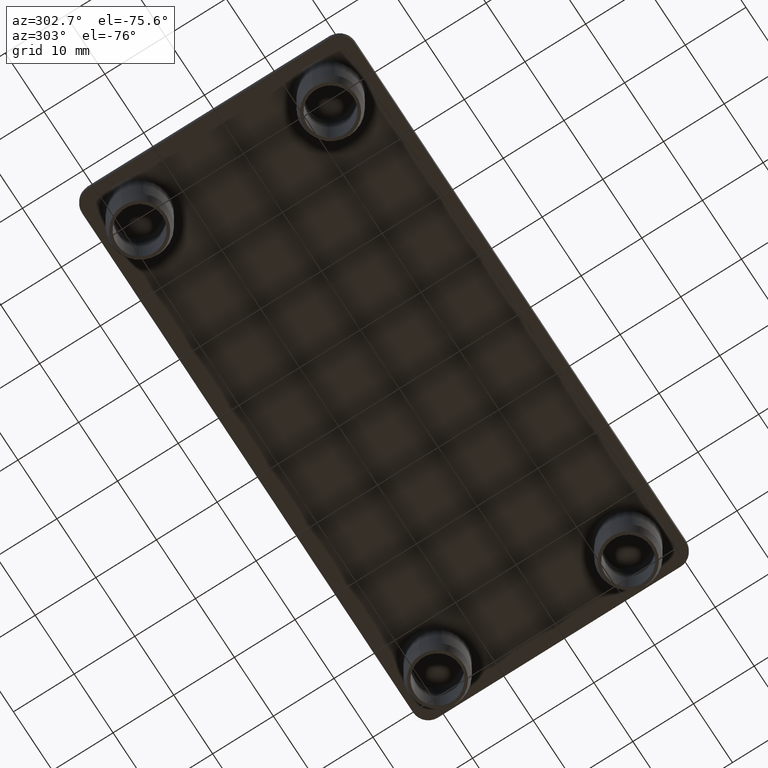
[diagram: clean part render]
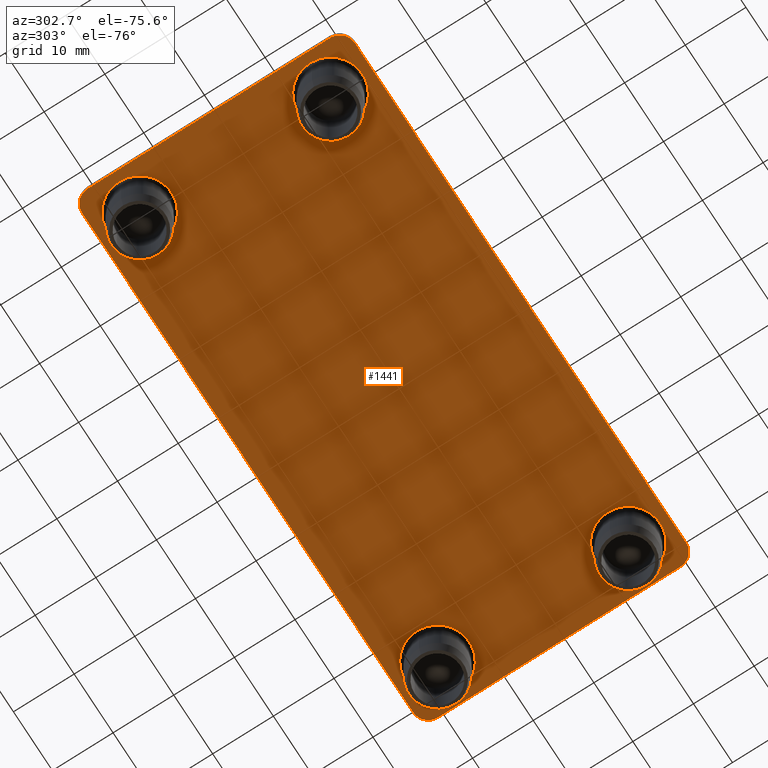
[diagram: same view with one face highlighted and labeled with its STEP entity id]
A machine part, auxiliary view. The second image highlights one B-rep face of the part: STEP entity #1441.
In plain terms, the highlighted planar face has unit normal (0, 0, -1).
Its self-contained STEP definition (entity closure, byte-faithful):
#228=CARTESIAN_POINT('',(-43.480000000000011,6.769999999999996,-8.881784E-016));
#229=VERTEX_POINT('',#228);
#237=CARTESIAN_POINT('',(-32.980000000000004,6.769999999999996,-8.881784E-016));
#238=VERTEX_POINT('',#237);
#239=CARTESIAN_POINT('',(-38.230000000000011,6.769999999999996,-8.881784E-016));
#240=DIRECTION('',(0.0,1.224647E-016,1.0));
#241=DIRECTION('',(1.0,0.0,0.0));
#242=AXIS2_PLACEMENT_3D('',#239,#240,#241);
#243=CIRCLE('',#242,5.249999999999998);
#244=EDGE_CURVE('',#238,#229,#243,.T.);
#498=CARTESIAN_POINT('',(32.979999999999990,6.769999999999996,-8.881784E-016));
#499=VERTEX_POINT('',#498);
#507=CARTESIAN_POINT('',(43.479999999999997,6.769999999999996,-8.881784E-016));
#508=VERTEX_POINT('',#507);
#509=CARTESIAN_POINT('',(38.229999999999997,6.769999999999996,-8.881784E-016));
#510=DIRECTION('',(0.0,1.224647E-016,1.0));
#511=DIRECTION('',(1.0,0.0,0.0));
#512=AXIS2_PLACEMENT_3D('',#509,#510,#511);
#513=CIRCLE('',#512,5.249999999999998);
#514=EDGE_CURVE('',#508,#499,#513,.T.);
#764=CARTESIAN_POINT('',(32.979999999999997,38.229999999999997,-4.440892E-015));
#765=VERTEX_POINT('',#764);
#773=CARTESIAN_POINT('',(43.479999999999997,38.229999999999997,-4.440892E-015));
#774=VERTEX_POINT('',#773);
#775=CARTESIAN_POINT('',(38.229999999999997,38.229999999999997,-4.440892E-015));
#776=DIRECTION('',(0.0,1.224647E-016,1.0));
#777=DIRECTION('',(1.0,0.0,0.0));
#778=AXIS2_PLACEMENT_3D('',#775,#776,#777);
#779=CIRCLE('',#778,5.249999999999998);
#780=EDGE_CURVE('',#774,#765,#779,.T.);
#1034=CARTESIAN_POINT('',(-43.480000000000011,38.229999999999997,-4.440892E-015));
#1035=VERTEX_POINT('',#1034);
#1043=CARTESIAN_POINT('',(-32.979999999999997,38.229999999999997,-4.440892E-015));
#1044=VERTEX_POINT('',#1043);
#1045=CARTESIAN_POINT('',(-38.230000000000011,38.229999999999997,-4.440892E-015));
#1046=DIRECTION('',(0.0,1.224647E-016,1.0));
#1047=DIRECTION('',(1.0,0.0,0.0));
#1048=AXIS2_PLACEMENT_3D('',#1045,#1046,#1047);
#1049=CIRCLE('',#1048,5.250000000000005);
#1050=EDGE_CURVE('',#1044,#1035,#1049,.T.);
#1326=CARTESIAN_POINT('',(-49.499999999999993,47.249999999999986,-5.773160E-015));
#1327=DIRECTION('',(0.0,0.0,-1.0));
#1328=DIRECTION('',(1.0,0.0,0.0));
#1329=AXIS2_PLACEMENT_3D('',#1326,#1327,#1328);
#1330=PLANE('',#1329);
#1331=CARTESIAN_POINT('',(-42.499999999999993,0.0,0.0));
#1332=VERTEX_POINT('',#1331);
#1333=CARTESIAN_POINT('',(-44.999999999999993,2.500000000000000,0.0));
#1334=VERTEX_POINT('',#1333);
#1335=CARTESIAN_POINT('',(-42.499999999999993,2.500000000000000,0.0));
#1336=DIRECTION('',(0.0,-1.224647E-016,-1.0));
#1337=DIRECTION('',(1.0,0.0,0.0));
#1338=AXIS2_PLACEMENT_3D('',#1335,#1336,#1337);
#1339=CIRCLE('',#1338,2.500000000000003);
#1340=EDGE_CURVE('',#1332,#1334,#1339,.T.);
#1341=ORIENTED_EDGE('',*,*,#1340,.T.);
#1342=CARTESIAN_POINT('',(-44.999999999999993,42.499999999999993,-5.329071E-015));
#1343=VERTEX_POINT('',#1342);
#1344=CARTESIAN_POINT('',(-44.999999999999993,2.500000000000000,0.0));
#1345=DIRECTION('',(0.0,1.0,0.0));
#1346=VECTOR('',#1345,39.999999999999993);
#1347=LINE('',#1344,#1346);
#1348=EDGE_CURVE('',#1334,#1343,#1347,.T.);
#1349=ORIENTED_EDGE('',*,*,#1348,.T.);
#1350=CARTESIAN_POINT('',(-42.499999999999993,44.999999999999993,-5.329071E-015));
#1351=VERTEX_POINT('',#1350);
#1352=CARTESIAN_POINT('',(-42.499999999999993,42.499999999999993,-5.329071E-015));
#1353=DIRECTION('',(0.0,-1.224647E-016,-1.0));
#1354=DIRECTION('',(1.0,0.0,0.0));
#1355=AXIS2_PLACEMENT_3D('',#1352,#1353,#1354);
#1356=CIRCLE('',#1355,2.500000000000003);
#1357=EDGE_CURVE('',#1343,#1351,#1356,.T.);
#1358=ORIENTED_EDGE('',*,*,#1357,.T.);
#1359=CARTESIAN_POINT('',(42.500000000000000,44.999999999999986,-5.329071E-015));
#1360=VERTEX_POINT('',#1359);
#1361=CARTESIAN_POINT('',(-42.499999999999993,44.999999999999986,-5.329071E-015));
#1362=DIRECTION('',(1.0,0.0,0.0));
#1363=VECTOR('',#1362,85.0);
#1364=LINE('',#1361,#1363);
#1365=EDGE_CURVE('',#1351,#1360,#1364,.T.);
#1366=ORIENTED_EDGE('',*,*,#1365,.T.);
#1367=CARTESIAN_POINT('',(45.0,42.499999999999993,-5.329071E-015));
#1368=VERTEX_POINT('',#1367);
#1369=CARTESIAN_POINT('',(42.500000000000000,42.499999999999993,-5.329071E-015));
#1370=DIRECTION('',(0.0,-1.224647E-016,-1.0));
#1371=DIRECTION('',(-1.0,0.0,0.0));
#1372=AXIS2_PLACEMENT_3D('',#1369,#1370,#1371);
#1373=CIRCLE('',#1372,2.500000000000003);
#1374=EDGE_CURVE('',#1360,#1368,#1373,.T.);
#1375=ORIENTED_EDGE('',*,*,#1374,.T.);
#1376=CARTESIAN_POINT('',(44.999999999999993,2.500000000000000,0.0));
#1377=VERTEX_POINT('',#1376);
#1378=CARTESIAN_POINT('',(44.999999999999993,42.499999999999993,-5.329071E-015));
#1379=DIRECTION('',(0.0,-1.0,0.0));
#1380=VECTOR('',#1379,40.0);
#1381=LINE('',#1378,#1380);
#1382=EDGE_CURVE('',#1368,#1377,#1381,.T.);
#1383=ORIENTED_EDGE('',*,*,#1382,.T.);
#1384=CARTESIAN_POINT('',(42.500000000000000,0.0,0.0));
#1385=VERTEX_POINT('',#1384);
#1386=CARTESIAN_POINT('',(42.499999999999993,2.500000000000000,0.0));
#1387=DIRECTION('',(0.0,-1.224647E-016,-1.0));
#1388=DIRECTION('',(-1.0,0.0,0.0));
#1389=AXIS2_PLACEMENT_3D('',#1386,#1387,#1388);
#1390=CIRCLE('',#1389,2.500000000000003);
#1391=EDGE_CURVE('',#1377,#1385,#1390,.T.);
#1392=ORIENTED_EDGE('',*,*,#1391,.T.);
#1393=CARTESIAN_POINT('',(42.500000000000000,0.0,0.0));
#1394=DIRECTION('',(-1.0,0.0,0.0));
#1395=VECTOR('',#1394,85.0);
#1396=LINE('',#1393,#1395);
#1397=EDGE_CURVE('',#1385,#1332,#1396,.T.);
#1398=ORIENTED_EDGE('',*,*,#1397,.T.);
#1399=EDGE_LOOP('',(#1341,#1349,#1358,#1366,#1375,#1383,#1392,#1398));
#1400=FACE_OUTER_BOUND('',#1399,.T.);
#1401=ORIENTED_EDGE('',*,*,#514,.T.);
#1402=CARTESIAN_POINT('',(38.229999999999997,6.769999999999996,-8.881784E-016));
#1403=DIRECTION('',(0.0,1.224647E-016,1.0));
#1404=DIRECTION('',(1.0,0.0,0.0));
#1405=AXIS2_PLACEMENT_3D('',#1402,#1403,#1404);
#1406=CIRCLE('',#1405,5.249999999999998);
#1407=EDGE_CURVE('',#499,#508,#1406,.T.);
#1408=ORIENTED_EDGE('',*,*,#1407,.T.);
#1409=EDGE_LOOP('',(#1401,#1408));
#1410=FACE_BOUND('',#1409,.T.);
#1411=ORIENTED_EDGE('',*,*,#244,.T.);
#1412=CARTESIAN_POINT('',(-38.230000000000011,6.769999999999996,-8.881784E-016));
#1413=DIRECTION('',(0.0,1.224647E-016,1.0));
#1414=DIRECTION('',(1.0,0.0,0.0));
#1415=AXIS2_PLACEMENT_3D('',#1412,#1413,#1414);
#1416=CIRCLE('',#1415,5.249999999999998);
#1417=EDGE_CURVE('',#229,#238,#1416,.T.);
#1418=ORIENTED_EDGE('',*,*,#1417,.T.);
#1419=EDGE_LOOP('',(#1411,#1418));
#1420=FACE_BOUND('',#1419,.T.);
#1421=ORIENTED_EDGE('',*,*,#1050,.T.);
#1422=CARTESIAN_POINT('',(-38.230000000000011,38.229999999999997,-4.440892E-015));
#1423=DIRECTION('',(0.0,1.224647E-016,1.0));
#1424=DIRECTION('',(1.0,0.0,0.0));
#1425=AXIS2_PLACEMENT_3D('',#1422,#1423,#1424);
#1426=CIRCLE('',#1425,5.250000000000005);
#1427=EDGE_CURVE('',#1035,#1044,#1426,.T.);
#1428=ORIENTED_EDGE('',*,*,#1427,.T.);
#1429=EDGE_LOOP('',(#1421,#1428));
#1430=FACE_BOUND('',#1429,.T.);
#1431=ORIENTED_EDGE('',*,*,#780,.T.);
#1432=CARTESIAN_POINT('',(38.229999999999997,38.229999999999997,-4.440892E-015));
#1433=DIRECTION('',(0.0,1.224647E-016,1.0));
#1434=DIRECTION('',(1.0,0.0,0.0));
#1435=AXIS2_PLACEMENT_3D('',#1432,#1433,#1434);
#1436=CIRCLE('',#1435,5.249999999999998);
#1437=EDGE_CURVE('',#765,#774,#1436,.T.);
#1438=ORIENTED_EDGE('',*,*,#1437,.T.);
#1439=EDGE_LOOP('',(#1431,#1438));
#1440=FACE_BOUND('',#1439,.T.);
#1441=ADVANCED_FACE('',(#1400,#1410,#1420,#1430,#1440),#1330,.T.);